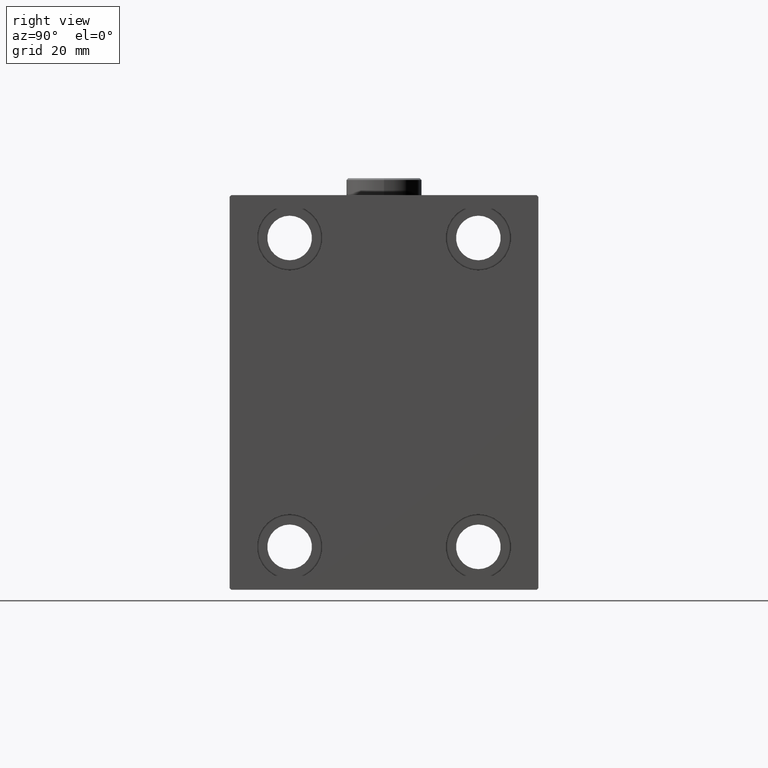
[diagram: clean part render]
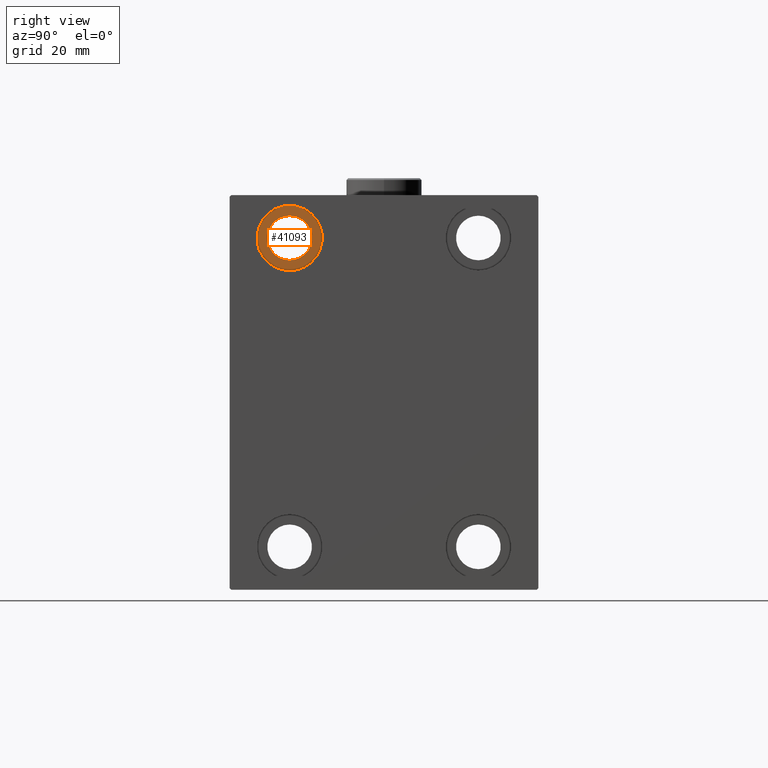
[diagram: same view with one face highlighted and labeled with its STEP entity id]
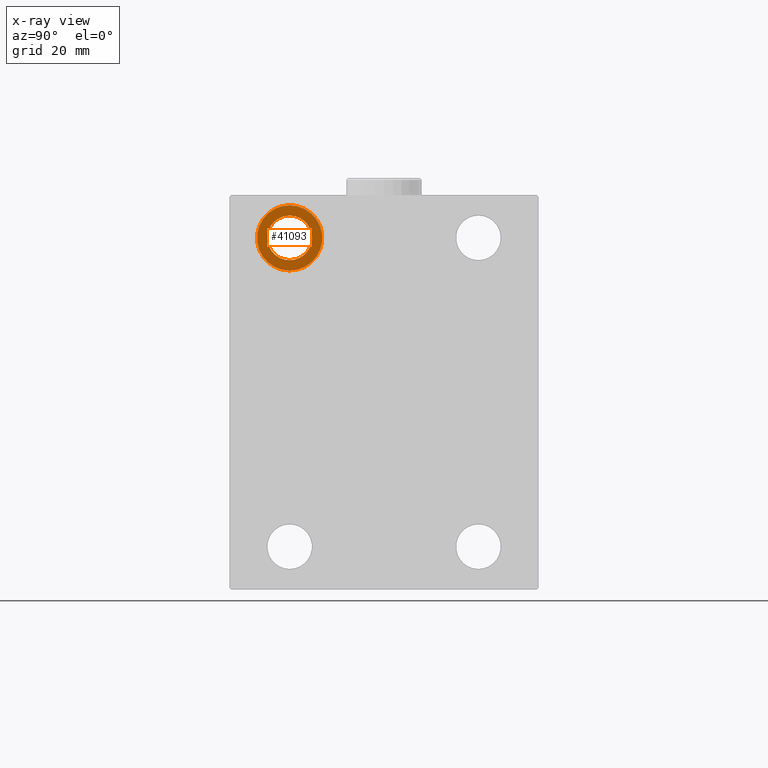
[diagram: x-ray of the same camera — body ghosted, the highlighted face saturated]
A machine part, right view. The second image highlights one B-rep face of the part: STEP entity #41093.
The next image is the same camera in x-ray: the body ghosted, the highlighted face saturated — about 0% of this face is hidden behind the body in this view.
In plain terms, the highlighted planar face has unit normal (1, 0, 0).
Its self-contained STEP definition (entity closure, byte-faithful):
#751 = VERTEX_POINT ( 'NONE', #31834 ) ;
#3064 = EDGE_CURVE ( 'NONE', #751, #30987, #37423, .T. ) ;
#3346 = ORIENTED_EDGE ( 'NONE', *, *, #20475, .F. ) ;
#7282 = DIRECTION ( 'NONE',  ( 0.000000000000000000, 0.000000000000000000, -1.000000000000000000 ) ) ;
#7322 = VERTEX_POINT ( 'NONE', #20754 ) ;
#8803 = DIRECTION ( 'NONE',  ( -1.000000000000000000, -0.000000000000000000, -0.000000000000000000 ) ) ;
#9257 = DIRECTION ( 'NONE',  ( 0.000000000000000000, 0.000000000000000000, -1.000000000000000000 ) ) ;
#10072 = DIRECTION ( 'NONE',  ( 0.000000000000000000, 0.000000000000000000, 1.000000000000000000 ) ) ;
#11203 = DIRECTION ( 'NONE',  ( 0.000000000000000000, 0.000000000000000000, 1.000000000000000000 ) ) ;
#14513 = AXIS2_PLACEMENT_3D ( 'NONE', #28553, #35659, #25357 ) ;
#14642 = CARTESIAN_POINT ( 'NONE',  ( 125.0000000000000000, 0.000000000000000000, 0.000000000000000000 ) ) ;
#14865 = FACE_OUTER_BOUND ( 'NONE', #20260, .T. ) ;
#16005 = CARTESIAN_POINT ( 'NONE',  ( 125.0000000000000000, -27.49999999999998934, 38.50000000000000711 ) ) ;
#17563 = AXIS2_PLACEMENT_3D ( 'NONE', #44082, #8803, #9257 ) ;
#19931 = CARTESIAN_POINT ( 'NONE',  ( 125.0000000000000000, -27.49999999999998934, 45.00000000000000711 ) ) ;
#20260 = EDGE_LOOP ( 'NONE', ( #3346, #27357 ) ) ;
#20475 = EDGE_CURVE ( 'NONE', #31135, #7322, #29845, .T. ) ;
#20671 = ORIENTED_EDGE ( 'NONE', *, *, #31559, .T. ) ;
#20754 = CARTESIAN_POINT ( 'NONE',  ( 125.0000000000000000, -27.49999999999998934, 54.50000000000000711 ) ) ;
#22053 = AXIS2_PLACEMENT_3D ( 'NONE', #31785, #32466, #7282 ) ;
#22568 = EDGE_LOOP ( 'NONE', ( #28579, #20671 ) ) ;
#22976 = CIRCLE ( 'NONE', #31725, 9.500000000000001776 ) ;
#25357 = DIRECTION ( 'NONE',  ( 0.000000000000000000, 0.000000000000000000, 1.000000000000000000 ) ) ;
#27357 = ORIENTED_EDGE ( 'NONE', *, *, #40836, .F. ) ;
#28376 = PLANE ( 'NONE',  #32484 ) ;
#28553 = CARTESIAN_POINT ( 'NONE',  ( 125.0000000000000000, -27.49999999999998934, 45.00000000000000711 ) ) ;
#28579 = ORIENTED_EDGE ( 'NONE', *, *, #3064, .T. ) ;
#28834 = FACE_BOUND ( 'NONE', #22568, .T. ) ;
#29845 = CIRCLE ( 'NONE', #14513, 9.500000000000001776 ) ;
#30987 = VERTEX_POINT ( 'NONE', #16005 ) ;
#31135 = VERTEX_POINT ( 'NONE', #35445 ) ;
#31559 = EDGE_CURVE ( 'NONE', #30987, #751, #39521, .T. ) ;
#31725 = AXIS2_PLACEMENT_3D ( 'NONE', #19931, #41468, #10072 ) ;
#31785 = CARTESIAN_POINT ( 'NONE',  ( 125.0000000000000000, -27.49999999999998934, 45.00000000000000711 ) ) ;
#31834 = CARTESIAN_POINT ( 'NONE',  ( 125.0000000000000000, -27.49999999999998934, 51.50000000000000711 ) ) ;
#32466 = DIRECTION ( 'NONE',  ( -1.000000000000000000, -0.000000000000000000, -0.000000000000000000 ) ) ;
#32484 = AXIS2_PLACEMENT_3D ( 'NONE', #14642, #42366, #11203 ) ;
#35445 = CARTESIAN_POINT ( 'NONE',  ( 125.0000000000000000, -27.49999999999998934, 35.50000000000000711 ) ) ;
#35659 = DIRECTION ( 'NONE',  ( -1.000000000000000000, -0.000000000000000000, -0.000000000000000000 ) ) ;
#37423 = CIRCLE ( 'NONE', #22053, 6.499999999999999112 ) ;
#39521 = CIRCLE ( 'NONE', #17563, 6.499999999999999112 ) ;
#40836 = EDGE_CURVE ( 'NONE', #7322, #31135, #22976, .T. ) ;
#41093 = ADVANCED_FACE ( 'NONE', ( #14865, #28834 ), #28376, .T. ) ;
#41468 = DIRECTION ( 'NONE',  ( -1.000000000000000000, -0.000000000000000000, -0.000000000000000000 ) ) ;
#42366 = DIRECTION ( 'NONE',  ( 1.000000000000000000, 0.000000000000000000, -0.000000000000000000 ) ) ;
#44082 = CARTESIAN_POINT ( 'NONE',  ( 125.0000000000000000, -27.49999999999998934, 45.00000000000000711 ) ) ;